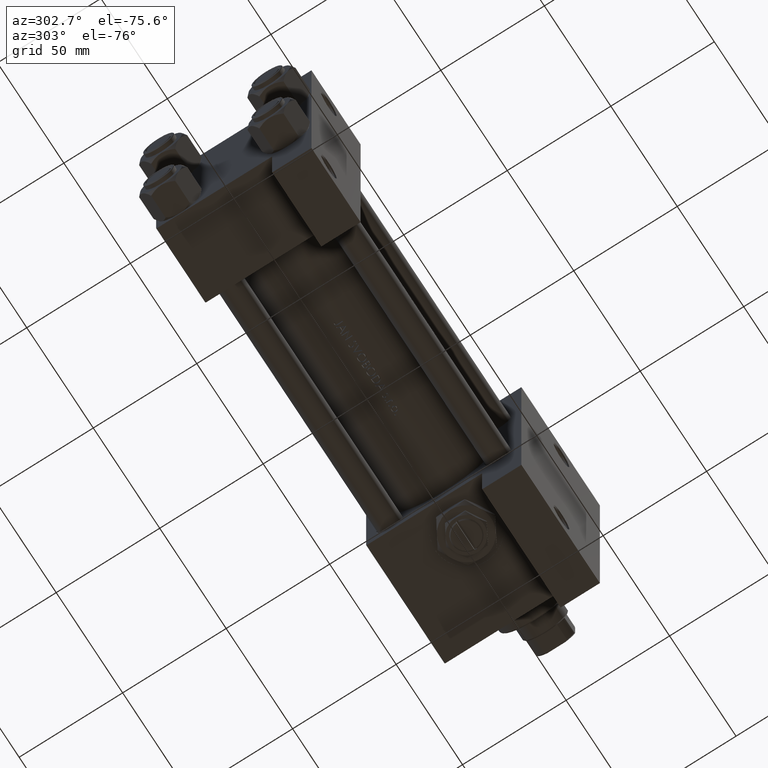
[diagram: clean part render]
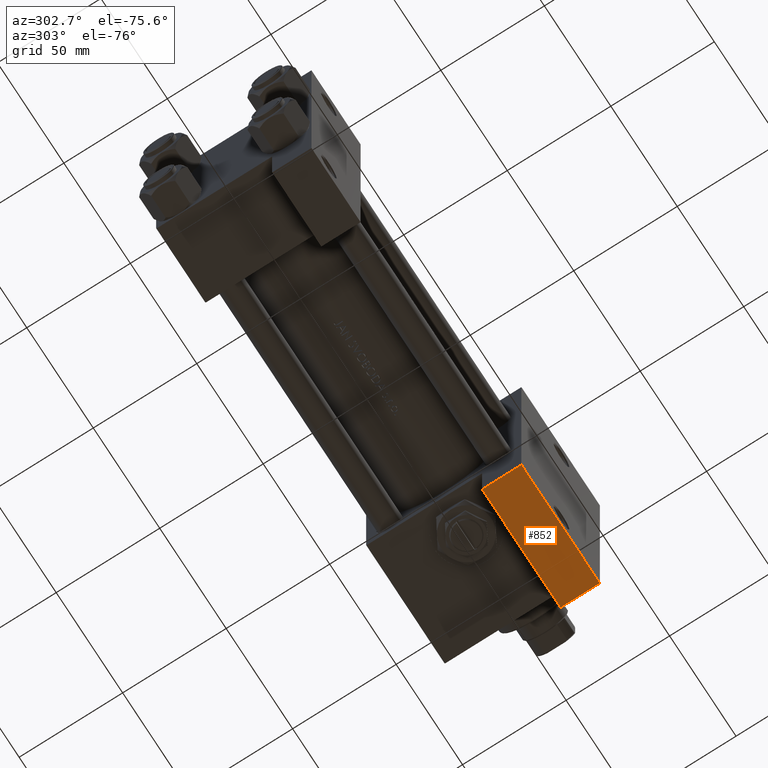
[diagram: same view with one face highlighted and labeled with its STEP entity id]
A machine part, auxiliary view. The second image highlights one B-rep face of the part: STEP entity #852.
In plain terms, the highlighted planar face has unit normal (0, 0, -1).
Its self-contained STEP definition (entity closure, byte-faithful):
#3 = ORIENTED_EDGE ( 'NONE', *, *, #19968, .F. ) ;
#46 = CARTESIAN_POINT ( 'NONE',  ( 158.0000000000000284, 63.49999999999998579, -18.50000000000000000 ) ) ;
#852 = ADVANCED_FACE ( 'NONE', ( #31820 ), #5424, .T. ) ;
#1206 = CARTESIAN_POINT ( 'NONE',  ( 217.0000000000000568, 63.49999999999998579, -18.50000000000000000 ) ) ;
#2847 = VERTEX_POINT ( 'NONE', #27537 ) ;
#2903 = VERTEX_POINT ( 'NONE', #6580 ) ;
#3586 = VECTOR ( 'NONE', #39074, 1000.000000000000000 ) ;
#4579 = VERTEX_POINT ( 'NONE', #46 ) ;
#5424 = PLANE ( 'NONE',  #10033 ) ;
#6580 = CARTESIAN_POINT ( 'NONE',  ( 217.0000000000000568, 63.49999999999998579, -18.50000000000000000 ) ) ;
#6599 = LINE ( 'NONE', #37487, #21355 ) ;
#6867 = DIRECTION ( 'NONE',  ( -0.000000000000000000, 1.000000000000000000, 0.000000000000000000 ) ) ;
#6891 = EDGE_CURVE ( 'NONE', #2903, #37629, #23637, .T. ) ;
#10033 = AXIS2_PLACEMENT_3D ( 'NONE', #43264, #6867, #14102 ) ;
#10056 = CARTESIAN_POINT ( 'NONE',  ( 158.0000000000000284, 63.49999999999998579, -18.50000000000000000 ) ) ;
#10481 = DIRECTION ( 'NONE',  ( 1.000000000000000000, 0.000000000000000000, 0.000000000000000000 ) ) ;
#14102 = DIRECTION ( 'NONE',  ( 0.000000000000000000, -0.000000000000000000, 1.000000000000000000 ) ) ;
#15885 = EDGE_CURVE ( 'NONE', #2847, #37629, #6599, .T. ) ;
#19968 = EDGE_CURVE ( 'NONE', #4579, #2847, #25249, .T. ) ;
#21158 = EDGE_CURVE ( 'NONE', #4579, #2903, #40861, .T. ) ;
#21355 = VECTOR ( 'NONE', #21807, 1000.000000000000000 ) ;
#21807 = DIRECTION ( 'NONE',  ( 1.000000000000000000, 0.000000000000000000, 0.000000000000000000 ) ) ;
#23637 = LINE ( 'NONE', #1206, #3586 ) ;
#23804 = VECTOR ( 'NONE', #10481, 1000.000000000000000 ) ;
#24941 = CARTESIAN_POINT ( 'NONE',  ( 217.0000000000000568, 63.49999999999998579, -37.50000000000000000 ) ) ;
#25249 = LINE ( 'NONE', #10056, #36491 ) ;
#25722 = DIRECTION ( 'NONE',  ( 0.000000000000000000, 0.000000000000000000, -1.000000000000000000 ) ) ;
#27537 = CARTESIAN_POINT ( 'NONE',  ( 158.0000000000000284, 63.49999999999998579, -37.50000000000000000 ) ) ;
#31820 = FACE_OUTER_BOUND ( 'NONE', #34514, .T. ) ;
#33385 = CARTESIAN_POINT ( 'NONE',  ( 158.0000000000000284, 63.49999999999998579, -18.50000000000000000 ) ) ;
#34194 = ORIENTED_EDGE ( 'NONE', *, *, #6891, .T. ) ;
#34514 = EDGE_LOOP ( 'NONE', ( #45269, #3, #36558, #34194 ) ) ;
#36491 = VECTOR ( 'NONE', #25722, 1000.000000000000000 ) ;
#36558 = ORIENTED_EDGE ( 'NONE', *, *, #21158, .T. ) ;
#37487 = CARTESIAN_POINT ( 'NONE',  ( 158.0000000000000284, 63.49999999999998579, -37.50000000000000000 ) ) ;
#37629 = VERTEX_POINT ( 'NONE', #24941 ) ;
#39074 = DIRECTION ( 'NONE',  ( 0.000000000000000000, 0.000000000000000000, -1.000000000000000000 ) ) ;
#40861 = LINE ( 'NONE', #33385, #23804 ) ;
#43264 = CARTESIAN_POINT ( 'NONE',  ( 158.0000000000000284, 63.49999999999998579, -18.50000000000000000 ) ) ;
#45269 = ORIENTED_EDGE ( 'NONE', *, *, #15885, .F. ) ;